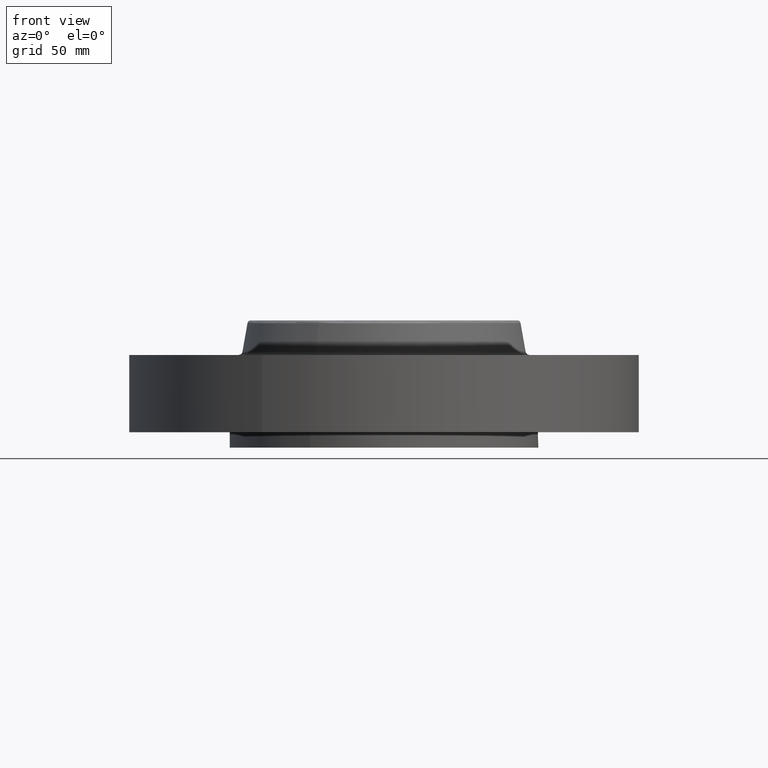
[diagram: clean part render]
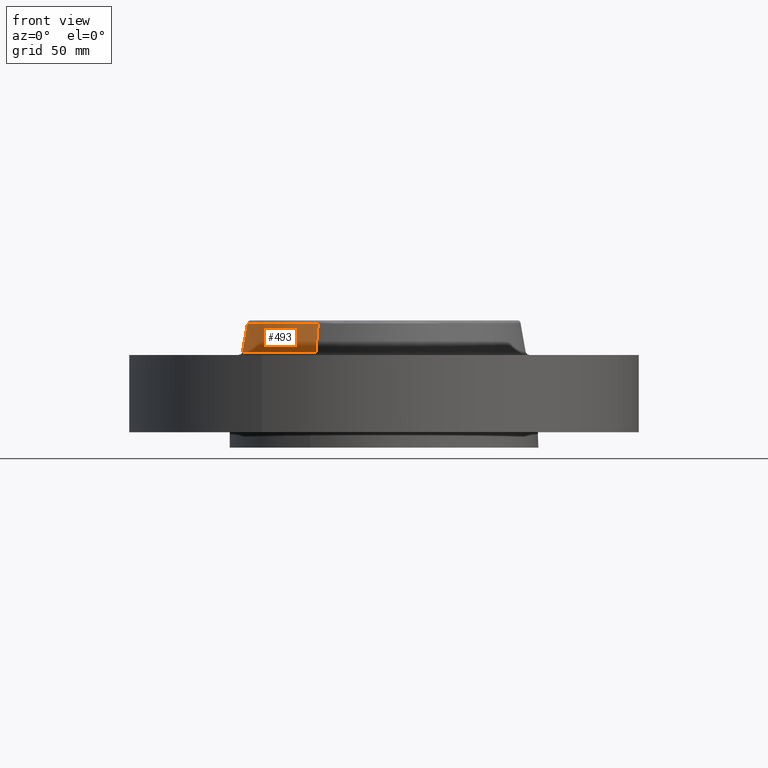
[diagram: same view with one face highlighted and labeled with its STEP entity id]
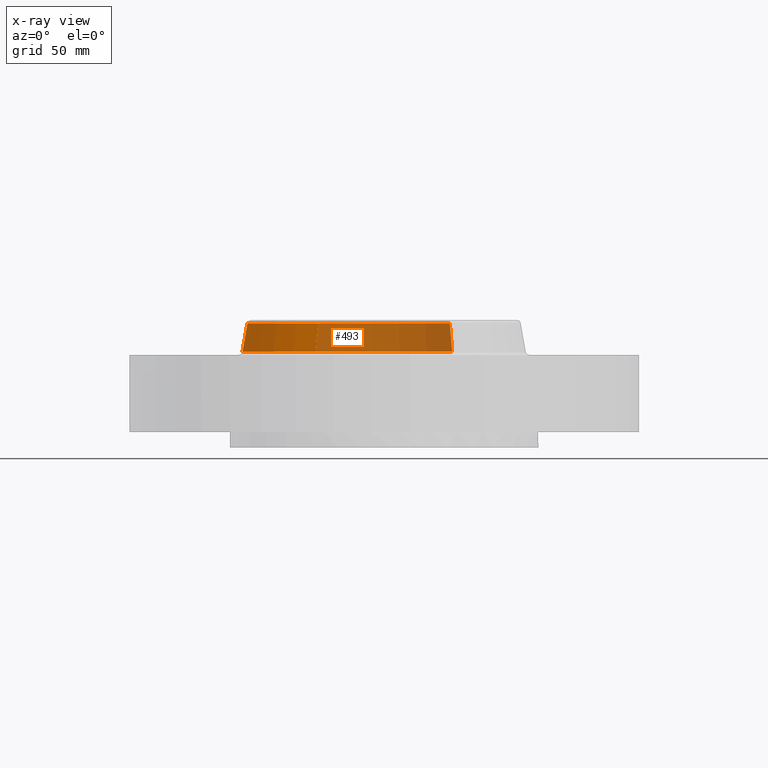
[diagram: x-ray of the same camera — body ghosted, the highlighted face saturated]
A machine part, front view. The second image highlights one B-rep face of the part: STEP entity #493.
The next image is the same camera in x-ray: the body ghosted, the highlighted face saturated — about 65% of this face is hidden behind the body in this view.
In plain terms, the highlighted conical surface has half-angle 10 deg.
Its self-contained STEP definition (entity closure, byte-faithful):
#348=AXIS2_PLACEMENT_3D('Circle Axis2P3D',#346,#347,$) ;
#480=AXIS2_PLACEMENT_3D('Cone Axis2P3D',#477,#478,#479) ;
#484=AXIS2_PLACEMENT_3D('Circle Axis2P3D',#482,#483,$) ;
#312=CARTESIAN_POINT('Vertex',(1.06432439756,1.94823274165,1.76041889067)) ;
#314=CARTESIAN_POINT('Vertex',(-1.06432439756,-1.94823274165,1.76041889067)) ;
#346=CARTESIAN_POINT('Axis2P3D Location',(0.,0.,1.76041889067)) ;
#448=CARTESIAN_POINT('Vertex',(1.10328162249,2.01954346356,1.29958110935)) ;
#450=CARTESIAN_POINT('Vertex',(-1.10328162249,-2.01954346356,1.29958110935)) ;
#453=CARTESIAN_POINT('Line Origine',(1.08380301002,1.9838881026,1.53000000001)) ;
#458=CARTESIAN_POINT('Line Origine',(-1.08380301002,-1.9838881026,1.53000000001)) ;
#477=CARTESIAN_POINT('Axis2P3D Location',(0.,0.,1.76041889067)) ;
#482=CARTESIAN_POINT('Axis2P3D Location',(0.,0.,1.29958110935)) ;
#347=DIRECTION('Axis2P3D Direction',(-0.,0.,-0.0393700787402)) ;
#454=DIRECTION('Vector Direction',(0.00327761303565,0.00599963041827,-0.03877195878)) ;
#459=DIRECTION('Vector Direction',(-0.00327761303565,-0.00599963041827,-0.03877195878)) ;
#478=DIRECTION('Axis2P3D Direction',(0.,0.,-0.0393700787402)) ;
#479=DIRECTION('Axis2P3D XDirection',(-0.0188750212049,-0.0345504945626,0.)) ;
#483=DIRECTION('Axis2P3D Direction',(-0.,0.,-0.0393700787402)) ;
#455=VECTOR('Line Direction',#454,0.0393700787402) ;
#460=VECTOR('Line Direction',#459,0.0393700787402) ;
#488=ORIENTED_EDGE('',*,*,#486,.F.) ;
#489=ORIENTED_EDGE('',*,*,#462,.T.) ;
#490=ORIENTED_EDGE('',*,*,#350,.T.) ;
#491=ORIENTED_EDGE('',*,*,#457,.F.) ;
#493=ADVANCED_FACE('PartBody',(#492),#481,.T.) ;
#349=CIRCLE('generated circle',#348,2.21999937812) ;
#485=CIRCLE('generated circle',#484,2.3012575127) ;
#481=CONICAL_SURFACE('Cone',#480,2.21999937812,0.174532925199) ;
#350=EDGE_CURVE('',#315,#313,#349,.T.) ;
#457=EDGE_CURVE('',#449,#313,#456,.F.) ;
#462=EDGE_CURVE('',#451,#315,#461,.F.) ;
#486=EDGE_CURVE('',#451,#449,#485,.T.) ;
#487=EDGE_LOOP('',(#488,#489,#490,#491)) ;
#492=FACE_OUTER_BOUND('',#487,.T.) ;
#456=LINE('Line',#453,#455) ;
#461=LINE('Line',#458,#460) ;
#313=VERTEX_POINT('',#312) ;
#315=VERTEX_POINT('',#314) ;
#449=VERTEX_POINT('',#448) ;
#451=VERTEX_POINT('',#450) ;